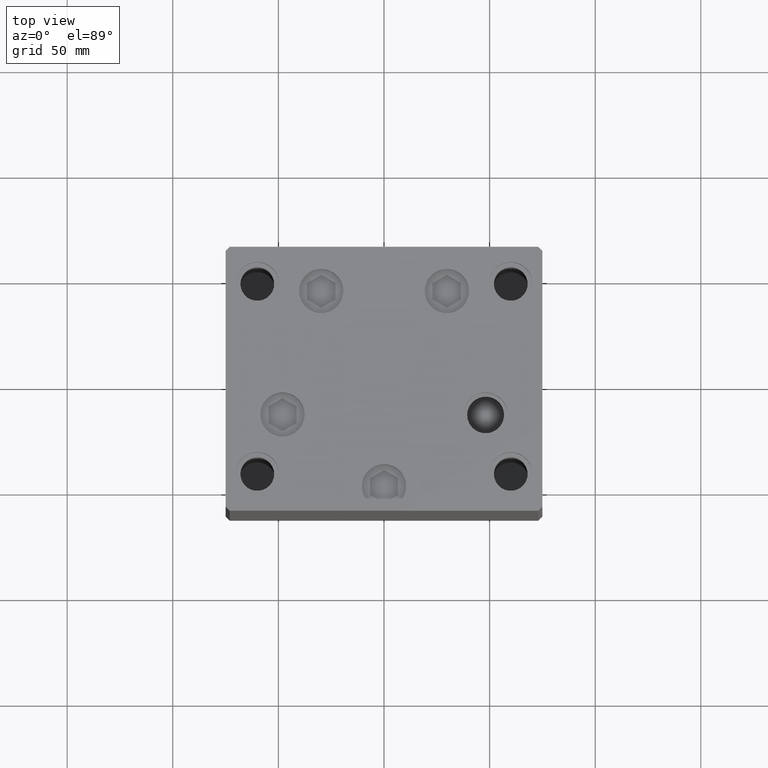
[diagram: clean part render]
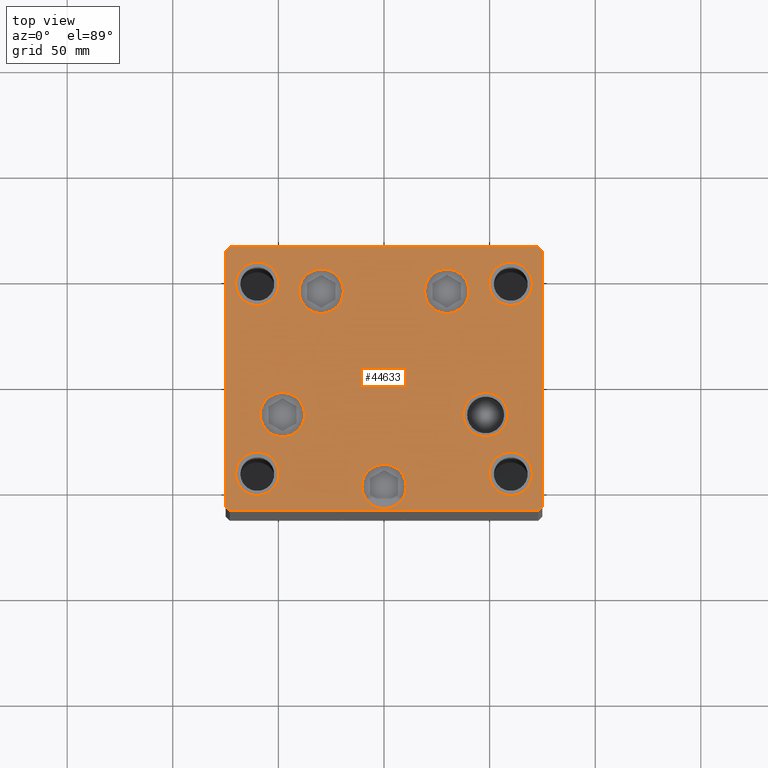
[diagram: same view with one face highlighted and labeled with its STEP entity id]
A machine part, top view. The second image highlights one B-rep face of the part: STEP entity #44633.
In plain terms, the highlighted planar face has unit normal (0, 0, 1).
Its self-contained STEP definition (entity closure, byte-faithful):
#127 = CIRCLE ( 'NONE', #6457, 10.24999999999999467 ) ;
#750 = EDGE_CURVE ( 'NONE', #40240, #33378, #17868, .T. ) ;
#775 = CARTESIAN_POINT ( 'NONE',  ( 40.23102073172059789, 41.43749999999999289, 0.000000000000000000 ) ) ;
#843 = DIRECTION ( 'NONE',  ( 1.000000000000000000, 0.000000000000000000, 0.000000000000000000 ) ) ;
#850 = ORIENTED_EDGE ( 'NONE', *, *, #21582, .F. ) ;
#887 = FACE_OUTER_BOUND ( 'NONE', #4030, .T. ) ;
#898 = CARTESIAN_POINT ( 'NONE',  ( 60.00000000000000000, 44.99999999999999289, 0.000000000000000000 ) ) ;
#906 = AXIS2_PLACEMENT_3D ( 'NONE', #898, #38533, #3875 ) ;
#946 = VERTEX_POINT ( 'NONE', #8362 ) ;
#1101 = ORIENTED_EDGE ( 'NONE', *, *, #45366, .T. ) ;
#1136 = CIRCLE ( 'NONE', #31188, 10.25000000000000178 ) ;
#1154 = ORIENTED_EDGE ( 'NONE', *, *, #750, .F. ) ;
#1225 = DIRECTION ( 'NONE',  ( 0.000000000000000000, -0.000000000000000000, -1.000000000000000000 ) ) ;
#1242 = DIRECTION ( 'NONE',  ( 1.000000000000000000, 0.000000000000000000, 0.000000000000000000 ) ) ;
#1370 = FACE_BOUND ( 'NONE', #18839, .T. ) ;
#1555 = CARTESIAN_POINT ( 'NONE',  ( -40.23102073172060500, 41.43749999999998579, 0.000000000000000000 ) ) ;
#1628 = DIRECTION ( 'NONE',  ( 1.000000000000000000, 0.000000000000000000, 0.000000000000000000 ) ) ;
#1793 = ORIENTED_EDGE ( 'NONE', *, *, #8728, .T. ) ;
#1819 = ORIENTED_EDGE ( 'NONE', *, *, #14207, .T. ) ;
#1876 = ORIENTED_EDGE ( 'NONE', *, *, #26432, .T. ) ;
#2212 = DIRECTION ( 'NONE',  ( 0.000000000000000000, 0.000000000000000000, 1.000000000000000000 ) ) ;
#2905 = CIRCLE ( 'NONE', #44074, 10.50000000000000178 ) ;
#3040 = VERTEX_POINT ( 'NONE', #29205 ) ;
#3145 = CIRCLE ( 'NONE', #4733, 10.50000000000000178 ) ;
#3303 = ORIENTED_EDGE ( 'NONE', *, *, #24251, .T. ) ;
#3875 = DIRECTION ( 'NONE',  ( 1.000000000000000000, 0.000000000000000000, 0.000000000000000000 ) ) ;
#4030 = EDGE_LOOP ( 'NONE', ( #44259, #28566, #28024, #37695, #43482, #48357, #31366, #47616 ) ) ;
#4147 = VERTEX_POINT ( 'NONE', #44725 ) ;
#4422 = CARTESIAN_POINT ( 'NONE',  ( 75.00000000000001421, -60.50000000000000711, 0.000000000000000000 ) ) ;
#4514 = EDGE_CURVE ( 'NONE', #24857, #39633, #18824, .T. ) ;
#4662 = LINE ( 'NONE', #4422, #9582 ) ;
#4733 = AXIS2_PLACEMENT_3D ( 'NONE', #36085, #43257, #31640 ) ;
#5484 = DIRECTION ( 'NONE',  ( 1.000000000000000000, 0.000000000000000000, 0.000000000000000000 ) ) ;
#5689 = CARTESIAN_POINT ( 'NONE',  ( 6.245698675651500444E-15, -51.00000000000000000, 0.000000000000000000 ) ) ;
#5798 = ORIENTED_EDGE ( 'NONE', *, *, #21757, .F. ) ;
#6457 = AXIS2_PLACEMENT_3D ( 'NONE', #46111, #41919, #18920 ) ;
#6534 = DIRECTION ( 'NONE',  ( -1.000000000000000000, -1.901066822988282689E-16, 0.000000000000000000 ) ) ;
#6724 = CARTESIAN_POINT ( 'NONE',  ( -75.00000000000001421, 60.49999999999997158, 0.000000000000000000 ) ) ;
#7398 = EDGE_CURVE ( 'NONE', #25893, #7790, #21120, .T. ) ;
#7790 = VERTEX_POINT ( 'NONE', #9914 ) ;
#7907 = CARTESIAN_POINT ( 'NONE',  ( -49.74999999999999289, 45.00000000000000000, 0.000000000000000000 ) ) ;
#8362 = CARTESIAN_POINT ( 'NONE',  ( 49.75000000000000000, 44.99999999999999289, 0.000000000000000000 ) ) ;
#8515 = EDGE_CURVE ( 'NONE', #7790, #28975, #47538, .T. ) ;
#8728 = EDGE_CURVE ( 'NONE', #35503, #47976, #29105, .T. ) ;
#8733 = VERTEX_POINT ( 'NONE', #7907 ) ;
#8958 = DIRECTION ( 'NONE',  ( 0.000000000000000000, -0.000000000000000000, -1.000000000000000000 ) ) ;
#9412 = CARTESIAN_POINT ( 'NONE',  ( -73.00000000000001421, -62.50000000000002842, 0.000000000000000000 ) ) ;
#9582 = VECTOR ( 'NONE', #20020, 1000.000000000000000 ) ;
#9707 = VERTEX_POINT ( 'NONE', #18037 ) ;
#9890 = CARTESIAN_POINT ( 'NONE',  ( -59.99999999999999289, -45.00000000000000000, 0.000000000000000000 ) ) ;
#9914 = CARTESIAN_POINT ( 'NONE',  ( -75.00000000000001421, -60.50000000000001421, 0.000000000000000000 ) ) ;
#10577 = CARTESIAN_POINT ( 'NONE',  ( -49.74999999999998579, -45.00000000000000000, 0.000000000000000000 ) ) ;
#11401 = VERTEX_POINT ( 'NONE', #12012 ) ;
#11619 = CARTESIAN_POINT ( 'NONE',  ( -10.49999999999999289, -51.00000000000000000, 0.000000000000000000 ) ) ;
#11716 = AXIS2_PLACEMENT_3D ( 'NONE', #26903, #35048, #34311 ) ;
#11951 = AXIS2_PLACEMENT_3D ( 'NONE', #38877, #13623, #1242 ) ;
#11969 = CIRCLE ( 'NONE', #46760, 10.50000000000000000 ) ;
#12012 = CARTESIAN_POINT ( 'NONE',  ( -37.58326112068522207, -17.00000000000000711, 0.000000000000000000 ) ) ;
#12680 = EDGE_LOOP ( 'NONE', ( #48342, #1876 ) ) ;
#12792 = CIRCLE ( 'NONE', #40442, 10.25000000000000178 ) ;
#13050 = CARTESIAN_POINT ( 'NONE',  ( 37.58326112068522207, -16.99999999999999645, 0.000000000000000000 ) ) ;
#13606 = AXIS2_PLACEMENT_3D ( 'NONE', #28742, #20330, #35913 ) ;
#13623 = DIRECTION ( 'NONE',  ( 0.000000000000000000, 0.000000000000000000, 1.000000000000000000 ) ) ;
#13792 = DIRECTION ( 'NONE',  ( 0.000000000000000000, 0.000000000000000000, 1.000000000000000000 ) ) ;
#13866 = EDGE_LOOP ( 'NONE', ( #1819, #18526 ) ) ;
#14045 = VECTOR ( 'NONE', #44067, 1000.000000000000114 ) ;
#14207 = EDGE_CURVE ( 'NONE', #9707, #31898, #3145, .T. ) ;
#14535 = DIRECTION ( 'NONE',  ( 1.000000000000000000, 0.000000000000000000, 0.000000000000000000 ) ) ;
#14536 = CARTESIAN_POINT ( 'NONE',  ( 73.00000000000001421, -62.50000000000001421, 0.000000000000000000 ) ) ;
#14613 = VECTOR ( 'NONE', #19586, 1000.000000000000114 ) ;
#14983 = VERTEX_POINT ( 'NONE', #11619 ) ;
#15131 = EDGE_CURVE ( 'NONE', #36773, #32347, #48439, .T. ) ;
#15338 = DIRECTION ( 'NONE',  ( 0.000000000000000000, -0.000000000000000000, -1.000000000000000000 ) ) ;
#15586 = CARTESIAN_POINT ( 'NONE',  ( 48.08326112068522207, -16.99999999999999645, 0.000000000000000000 ) ) ;
#15650 = VERTEX_POINT ( 'NONE', #40558 ) ;
#15751 = FACE_BOUND ( 'NONE', #40609, .T. ) ;
#15865 = VERTEX_POINT ( 'NONE', #47387 ) ;
#15922 = CARTESIAN_POINT ( 'NONE',  ( 73.00000000000001421, -62.50000000000001421, 0.000000000000000000 ) ) ;
#16828 = CARTESIAN_POINT ( 'NONE',  ( -48.08326112068522207, -17.00000000000000711, 0.000000000000000000 ) ) ;
#16836 = DIRECTION ( 'NONE',  ( 1.000000000000000000, 9.505334114941407284E-17, 0.000000000000000000 ) ) ;
#16992 = CIRCLE ( 'NONE', #38313, 10.24999999999999467 ) ;
#17122 = CARTESIAN_POINT ( 'NONE',  ( -75.00000000000001421, -60.50000000000001421, 0.000000000000000000 ) ) ;
#17596 = VECTOR ( 'NONE', #6534, 1000.000000000000000 ) ;
#17774 = CARTESIAN_POINT ( 'NONE',  ( -70.25000000000000000, -45.00000000000000000, 0.000000000000000000 ) ) ;
#17868 = CIRCLE ( 'NONE', #32119, 10.25000000000000178 ) ;
#18037 = CARTESIAN_POINT ( 'NONE',  ( 19.23102073172059434, 41.43749999999999289, 0.000000000000000000 ) ) ;
#18133 = DIRECTION ( 'NONE',  ( 1.000000000000000000, 0.000000000000000000, 0.000000000000000000 ) ) ;
#18184 = ORIENTED_EDGE ( 'NONE', *, *, #28894, .F. ) ;
#18371 = DIRECTION ( 'NONE',  ( 0.000000000000000000, 0.000000000000000000, 1.000000000000000000 ) ) ;
#18431 = CIRCLE ( 'NONE', #41348, 10.25000000000000178 ) ;
#18502 = DIRECTION ( 'NONE',  ( 1.000000000000000000, 0.000000000000000000, 0.000000000000000000 ) ) ;
#18526 = ORIENTED_EDGE ( 'NONE', *, *, #42630, .T. ) ;
#18824 = CIRCLE ( 'NONE', #26746, 10.50000000000000178 ) ;
#18838 = EDGE_CURVE ( 'NONE', #4147, #946, #31692, .T. ) ;
#18839 = EDGE_LOOP ( 'NONE', ( #18184, #22650 ) ) ;
#18855 = LINE ( 'NONE', #48790, #14613 ) ;
#18920 = DIRECTION ( 'NONE',  ( 1.000000000000000000, 0.000000000000000000, 0.000000000000000000 ) ) ;
#19022 = DIRECTION ( 'NONE',  ( 0.000000000000000000, -0.000000000000000000, -1.000000000000000000 ) ) ;
#19223 = FACE_BOUND ( 'NONE', #12680, .T. ) ;
#19586 = DIRECTION ( 'NONE',  ( -0.7071067811865500152, 0.7071067811865451302, 0.000000000000000000 ) ) ;
#19766 = CARTESIAN_POINT ( 'NONE',  ( 75.00000000000001421, -60.50000000000000711, 0.000000000000000000 ) ) ;
#19775 = VERTEX_POINT ( 'NONE', #25991 ) ;
#19958 = PLANE ( 'NONE',  #11716 ) ;
#20020 = DIRECTION ( 'NONE',  ( -6.881547673296424104E-16, 1.000000000000000000, 0.000000000000000000 ) ) ;
#20056 = EDGE_CURVE ( 'NONE', #946, #4147, #41217, .T. ) ;
#20330 = DIRECTION ( 'NONE',  ( 0.000000000000000000, -0.000000000000000000, -1.000000000000000000 ) ) ;
#20552 = DIRECTION ( 'NONE',  ( 1.000000000000000000, 0.000000000000000000, 0.000000000000000000 ) ) ;
#21120 = LINE ( 'NONE', #6724, #31434 ) ;
#21582 = EDGE_CURVE ( 'NONE', #19775, #48090, #127, .T. ) ;
#21757 = EDGE_CURVE ( 'NONE', #33378, #40240, #12792, .T. ) ;
#22248 = EDGE_CURVE ( 'NONE', #32347, #15650, #4662, .T. ) ;
#22650 = ORIENTED_EDGE ( 'NONE', *, *, #32208, .F. ) ;
#22658 = DIRECTION ( 'NONE',  ( -0.7071067811865451302, -0.7071067811865500152, 0.000000000000000000 ) ) ;
#23355 = ORIENTED_EDGE ( 'NONE', *, *, #18838, .F. ) ;
#23838 = CIRCLE ( 'NONE', #13606, 10.50000000000000178 ) ;
#23878 = CIRCLE ( 'NONE', #44434, 10.50000000000000178 ) ;
#23908 = FACE_BOUND ( 'NONE', #30175, .T. ) ;
#23977 = CARTESIAN_POINT ( 'NONE',  ( -19.23102073172060145, 41.43749999999998579, 0.000000000000000000 ) ) ;
#24017 = DIRECTION ( 'NONE',  ( 0.000000000000000000, -0.000000000000000000, -1.000000000000000000 ) ) ;
#24251 = EDGE_CURVE ( 'NONE', #31029, #14983, #11969, .T. ) ;
#24258 = CARTESIAN_POINT ( 'NONE',  ( -70.25000000000000000, 45.00000000000000000, 0.000000000000000000 ) ) ;
#24479 = CARTESIAN_POINT ( 'NONE',  ( 58.58326112068522207, -16.99999999999999645, 0.000000000000000000 ) ) ;
#24563 = EDGE_CURVE ( 'NONE', #47976, #35503, #23838, .T. ) ;
#24857 = VERTEX_POINT ( 'NONE', #23977 ) ;
#25111 = EDGE_LOOP ( 'NONE', ( #5798, #1154 ) ) ;
#25267 = AXIS2_PLACEMENT_3D ( 'NONE', #35546, #39256, #1628 ) ;
#25893 = VERTEX_POINT ( 'NONE', #34828 ) ;
#25991 = CARTESIAN_POINT ( 'NONE',  ( 49.75000000000000000, -44.99999999999999289, 0.000000000000000000 ) ) ;
#26003 = CARTESIAN_POINT ( 'NONE',  ( -58.58326112068522207, -17.00000000000000711, 0.000000000000000000 ) ) ;
#26103 = EDGE_CURVE ( 'NONE', #15865, #25893, #41705, .T. ) ;
#26432 = EDGE_CURVE ( 'NONE', #11401, #46861, #23878, .T. ) ;
#26746 = AXIS2_PLACEMENT_3D ( 'NONE', #46378, #27104, #843 ) ;
#26903 = CARTESIAN_POINT ( 'NONE',  ( 0.000000000000000000, 0.000000000000000000, 0.000000000000000000 ) ) ;
#27104 = DIRECTION ( 'NONE',  ( 0.000000000000000000, -0.000000000000000000, -1.000000000000000000 ) ) ;
#27125 = EDGE_CURVE ( 'NONE', #3040, #15865, #39477, .T. ) ;
#27635 = FACE_BOUND ( 'NONE', #13866, .T. ) ;
#28024 = ORIENTED_EDGE ( 'NONE', *, *, #15131, .T. ) ;
#28551 = DIRECTION ( 'NONE',  ( 0.000000000000000000, -1.000000000000000000, 0.000000000000000000 ) ) ;
#28566 = ORIENTED_EDGE ( 'NONE', *, *, #37758, .T. ) ;
#28673 = CARTESIAN_POINT ( 'NONE',  ( 10.50000000000000711, -51.00000000000000000, 0.000000000000000000 ) ) ;
#28742 = CARTESIAN_POINT ( 'NONE',  ( 48.08326112068522207, -16.99999999999999645, 0.000000000000000000 ) ) ;
#28892 = VECTOR ( 'NONE', #16836, 1000.000000000000000 ) ;
#28894 = EDGE_CURVE ( 'NONE', #8733, #37757, #18431, .T. ) ;
#28975 = VERTEX_POINT ( 'NONE', #37800 ) ;
#29105 = CIRCLE ( 'NONE', #39332, 10.50000000000000178 ) ;
#29205 = CARTESIAN_POINT ( 'NONE',  ( 72.99999999999992895, 62.50000000000001421, 0.000000000000000000 ) ) ;
#29403 = CARTESIAN_POINT ( 'NONE',  ( 6.245698675651500444E-15, -51.00000000000000000, 0.000000000000000000 ) ) ;
#29849 = ORIENTED_EDGE ( 'NONE', *, *, #24563, .T. ) ;
#30175 = EDGE_LOOP ( 'NONE', ( #23355, #37232 ) ) ;
#30253 = CARTESIAN_POINT ( 'NONE',  ( 60.00000000000000000, -44.99999999999999289, 0.000000000000000000 ) ) ;
#30831 = ORIENTED_EDGE ( 'NONE', *, *, #33141, .F. ) ;
#31029 = VERTEX_POINT ( 'NONE', #28673 ) ;
#31188 = AXIS2_PLACEMENT_3D ( 'NONE', #47448, #13792, #43494 ) ;
#31193 = DIRECTION ( 'NONE',  ( 1.000000000000000000, 0.000000000000000000, 0.000000000000000000 ) ) ;
#31366 = ORIENTED_EDGE ( 'NONE', *, *, #26103, .T. ) ;
#31434 = VECTOR ( 'NONE', #28551, 1000.000000000000000 ) ;
#31640 = DIRECTION ( 'NONE',  ( 1.000000000000000000, 0.000000000000000000, 0.000000000000000000 ) ) ;
#31692 = CIRCLE ( 'NONE', #11951, 10.24999999999999467 ) ;
#31800 = VECTOR ( 'NONE', #22658, 1000.000000000000114 ) ;
#31898 = VERTEX_POINT ( 'NONE', #775 ) ;
#32119 = AXIS2_PLACEMENT_3D ( 'NONE', #9890, #2212, #40079 ) ;
#32208 = EDGE_CURVE ( 'NONE', #37757, #8733, #1136, .T. ) ;
#32347 = VERTEX_POINT ( 'NONE', #19766 ) ;
#32458 = VECTOR ( 'NONE', #47956, 1000.000000000000000 ) ;
#33141 = EDGE_CURVE ( 'NONE', #48090, #19775, #16992, .T. ) ;
#33378 = VERTEX_POINT ( 'NONE', #10577 ) ;
#33838 = CARTESIAN_POINT ( 'NONE',  ( -60.00000000000000000, 45.00000000000000000, 0.000000000000000000 ) ) ;
#34115 = EDGE_LOOP ( 'NONE', ( #30831, #850 ) ) ;
#34311 = DIRECTION ( 'NONE',  ( 1.000000000000000000, 0.000000000000000000, 0.000000000000000000 ) ) ;
#34351 = CARTESIAN_POINT ( 'NONE',  ( 29.73102073172059789, 41.43749999999999289, 0.000000000000000000 ) ) ;
#34828 = CARTESIAN_POINT ( 'NONE',  ( -75.00000000000001421, 60.49999999999997158, 0.000000000000000000 ) ) ;
#34989 = DIRECTION ( 'NONE',  ( 1.000000000000000000, 0.000000000000000000, 0.000000000000000000 ) ) ;
#35048 = DIRECTION ( 'NONE',  ( -0.000000000000000000, 0.000000000000000000, 1.000000000000000000 ) ) ;
#35344 = AXIS2_PLACEMENT_3D ( 'NONE', #16828, #1225, #31193 ) ;
#35503 = VERTEX_POINT ( 'NONE', #13050 ) ;
#35546 = CARTESIAN_POINT ( 'NONE',  ( -29.73102073172060500, 41.43749999999998579, 0.000000000000000000 ) ) ;
#35913 = DIRECTION ( 'NONE',  ( 1.000000000000000000, 0.000000000000000000, 0.000000000000000000 ) ) ;
#35946 = CIRCLE ( 'NONE', #42264, 10.50000000000000000 ) ;
#36085 = CARTESIAN_POINT ( 'NONE',  ( 29.73102073172059789, 41.43749999999999289, 0.000000000000000000 ) ) ;
#36773 = VERTEX_POINT ( 'NONE', #15922 ) ;
#36984 = EDGE_CURVE ( 'NONE', #15650, #3040, #18855, .T. ) ;
#37030 = EDGE_CURVE ( 'NONE', #14983, #31029, #35946, .T. ) ;
#37232 = ORIENTED_EDGE ( 'NONE', *, *, #20056, .F. ) ;
#37311 = DIRECTION ( 'NONE',  ( 0.000000000000000000, 0.000000000000000000, 1.000000000000000000 ) ) ;
#37695 = ORIENTED_EDGE ( 'NONE', *, *, #22248, .T. ) ;
#37757 = VERTEX_POINT ( 'NONE', #24258 ) ;
#37758 = EDGE_CURVE ( 'NONE', #28975, #36773, #47513, .T. ) ;
#37800 = CARTESIAN_POINT ( 'NONE',  ( -73.00000000000001421, -62.50000000000002842, 0.000000000000000000 ) ) ;
#37818 = ORIENTED_EDGE ( 'NONE', *, *, #37030, .T. ) ;
#37879 = EDGE_LOOP ( 'NONE', ( #1101, #44888 ) ) ;
#38029 = FACE_BOUND ( 'NONE', #25111, .T. ) ;
#38313 = AXIS2_PLACEMENT_3D ( 'NONE', #30253, #18371, #18133 ) ;
#38522 = FACE_BOUND ( 'NONE', #46028, .T. ) ;
#38533 = DIRECTION ( 'NONE',  ( 0.000000000000000000, 0.000000000000000000, 1.000000000000000000 ) ) ;
#38877 = CARTESIAN_POINT ( 'NONE',  ( 60.00000000000000000, 44.99999999999999289, 0.000000000000000000 ) ) ;
#39256 = DIRECTION ( 'NONE',  ( 0.000000000000000000, -0.000000000000000000, -1.000000000000000000 ) ) ;
#39332 = AXIS2_PLACEMENT_3D ( 'NONE', #15586, #15338, #41812 ) ;
#39477 = LINE ( 'NONE', #39729, #17596 ) ;
#39633 = VERTEX_POINT ( 'NONE', #1555 ) ;
#39729 = CARTESIAN_POINT ( 'NONE',  ( 72.99999999999992895, 62.50000000000001421, 0.000000000000000000 ) ) ;
#40079 = DIRECTION ( 'NONE',  ( 1.000000000000000000, 0.000000000000000000, 0.000000000000000000 ) ) ;
#40240 = VERTEX_POINT ( 'NONE', #17774 ) ;
#40442 = AXIS2_PLACEMENT_3D ( 'NONE', #47344, #43637, #34989 ) ;
#40558 = CARTESIAN_POINT ( 'NONE',  ( 74.99999999999992895, 60.50000000000002842, 0.000000000000000000 ) ) ;
#40609 = EDGE_LOOP ( 'NONE', ( #1793, #29849 ) ) ;
#41217 = CIRCLE ( 'NONE', #906, 10.24999999999999467 ) ;
#41348 = AXIS2_PLACEMENT_3D ( 'NONE', #33838, #37311, #18502 ) ;
#41452 = CARTESIAN_POINT ( 'NONE',  ( -73.00000000000001421, 62.49999999999998579, 0.000000000000000000 ) ) ;
#41519 = CARTESIAN_POINT ( 'NONE',  ( 70.25000000000000000, -44.99999999999999289, 0.000000000000000000 ) ) ;
#41705 = LINE ( 'NONE', #41452, #31800 ) ;
#41812 = DIRECTION ( 'NONE',  ( 1.000000000000000000, 0.000000000000000000, 0.000000000000000000 ) ) ;
#41919 = DIRECTION ( 'NONE',  ( 0.000000000000000000, 0.000000000000000000, 1.000000000000000000 ) ) ;
#42224 = FACE_BOUND ( 'NONE', #34115, .T. ) ;
#42264 = AXIS2_PLACEMENT_3D ( 'NONE', #5689, #24017, #20552 ) ;
#42438 = EDGE_CURVE ( 'NONE', #46861, #11401, #48771, .T. ) ;
#42471 = FACE_BOUND ( 'NONE', #37879, .T. ) ;
#42630 = EDGE_CURVE ( 'NONE', #31898, #9707, #2905, .T. ) ;
#42867 = CARTESIAN_POINT ( 'NONE',  ( -48.08326112068522207, -17.00000000000000711, 0.000000000000000000 ) ) ;
#43257 = DIRECTION ( 'NONE',  ( 0.000000000000000000, -0.000000000000000000, -1.000000000000000000 ) ) ;
#43482 = ORIENTED_EDGE ( 'NONE', *, *, #36984, .T. ) ;
#43494 = DIRECTION ( 'NONE',  ( 1.000000000000000000, 0.000000000000000000, 0.000000000000000000 ) ) ;
#43637 = DIRECTION ( 'NONE',  ( 0.000000000000000000, 0.000000000000000000, 1.000000000000000000 ) ) ;
#44067 = DIRECTION ( 'NONE',  ( 0.7071067811865451302, -0.7071067811865500152, 0.000000000000000000 ) ) ;
#44074 = AXIS2_PLACEMENT_3D ( 'NONE', #34351, #19022, #44759 ) ;
#44259 = ORIENTED_EDGE ( 'NONE', *, *, #8515, .T. ) ;
#44434 = AXIS2_PLACEMENT_3D ( 'NONE', #42867, #8958, #5484 ) ;
#44481 = DIRECTION ( 'NONE',  ( 0.000000000000000000, -0.000000000000000000, -1.000000000000000000 ) ) ;
#44633 = ADVANCED_FACE ( 'NONE', ( #42471, #27635, #15751, #38522, #19223, #42224, #38029, #1370, #23908, #887 ), #19958, .T. ) ;
#44725 = CARTESIAN_POINT ( 'NONE',  ( 70.25000000000000000, 44.99999999999999289, 0.000000000000000000 ) ) ;
#44759 = DIRECTION ( 'NONE',  ( 1.000000000000000000, 0.000000000000000000, 0.000000000000000000 ) ) ;
#44888 = ORIENTED_EDGE ( 'NONE', *, *, #4514, .T. ) ;
#45366 = EDGE_CURVE ( 'NONE', #39633, #24857, #48181, .T. ) ;
#46028 = EDGE_LOOP ( 'NONE', ( #37818, #3303 ) ) ;
#46111 = CARTESIAN_POINT ( 'NONE',  ( 60.00000000000000000, -44.99999999999999289, 0.000000000000000000 ) ) ;
#46378 = CARTESIAN_POINT ( 'NONE',  ( -29.73102073172060500, 41.43749999999998579, 0.000000000000000000 ) ) ;
#46760 = AXIS2_PLACEMENT_3D ( 'NONE', #29403, #44481, #14535 ) ;
#46861 = VERTEX_POINT ( 'NONE', #26003 ) ;
#47344 = CARTESIAN_POINT ( 'NONE',  ( -59.99999999999999289, -45.00000000000000000, 0.000000000000000000 ) ) ;
#47387 = CARTESIAN_POINT ( 'NONE',  ( -73.00000000000001421, 62.49999999999998579, 0.000000000000000000 ) ) ;
#47448 = CARTESIAN_POINT ( 'NONE',  ( -60.00000000000000000, 45.00000000000000000, 0.000000000000000000 ) ) ;
#47513 = LINE ( 'NONE', #9412, #28892 ) ;
#47538 = LINE ( 'NONE', #17122, #14045 ) ;
#47616 = ORIENTED_EDGE ( 'NONE', *, *, #7398, .T. ) ;
#47956 = DIRECTION ( 'NONE',  ( 0.7071067811865463515, 0.7071067811865487940, 0.000000000000000000 ) ) ;
#47976 = VERTEX_POINT ( 'NONE', #24479 ) ;
#48090 = VERTEX_POINT ( 'NONE', #41519 ) ;
#48181 = CIRCLE ( 'NONE', #25267, 10.50000000000000178 ) ;
#48342 = ORIENTED_EDGE ( 'NONE', *, *, #42438, .T. ) ;
#48357 = ORIENTED_EDGE ( 'NONE', *, *, #27125, .T. ) ;
#48439 = LINE ( 'NONE', #14536, #32458 ) ;
#48771 = CIRCLE ( 'NONE', #35344, 10.50000000000000178 ) ;
#48790 = CARTESIAN_POINT ( 'NONE',  ( 74.99999999999992895, 60.50000000000002842, 0.000000000000000000 ) ) ;